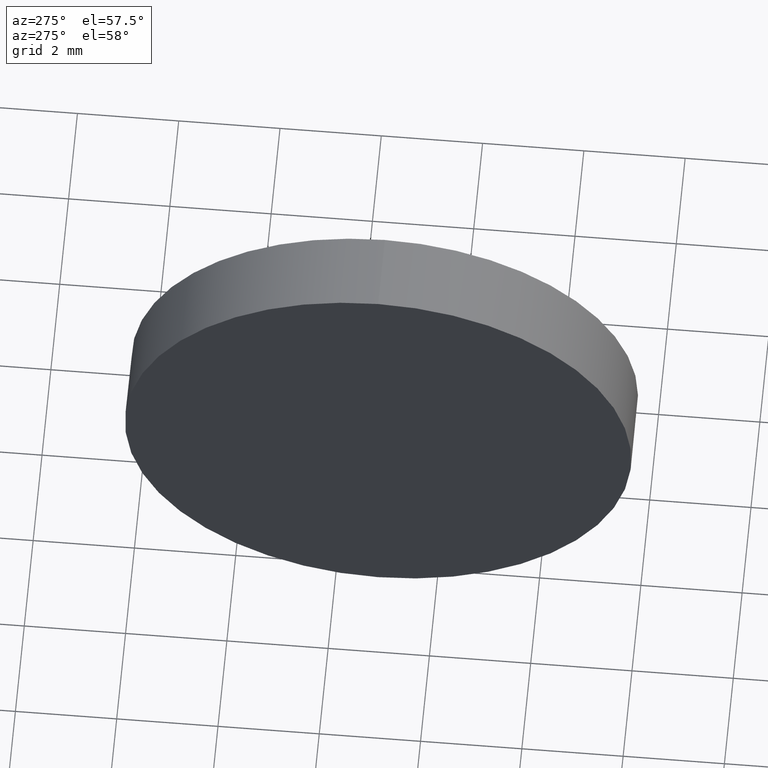
[diagram: clean part render]
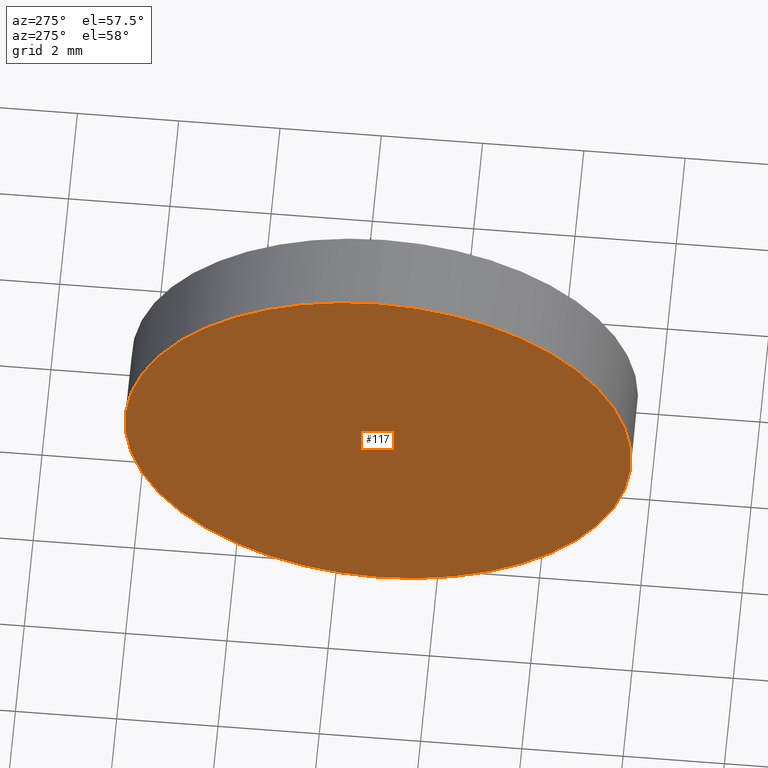
[diagram: same view with one face highlighted and labeled with its STEP entity id]
A machine part, auxiliary view. The second image highlights one B-rep face of the part: STEP entity #117.
In plain terms, the highlighted planar face has unit normal (1, 0, 0).
Its self-contained STEP definition (entity closure, byte-faithful):
#4 = VERTEX_POINT ( 'NONE', #175 ) ;
#14 = AXIS2_PLACEMENT_3D ( 'NONE', #152, #150, #165 ) ;
#18 = FACE_OUTER_BOUND ( 'NONE', #91, .T. ) ;
#36 = CARTESIAN_POINT ( 'NONE',  ( 487.6034320472339200, 77.15318376785940300, 0.0000000000000000000 ) ) ;
#56 = ORIENTED_EDGE ( 'NONE', *, *, #110, .T. ) ;
#60 = AXIS2_PLACEMENT_3D ( 'NONE', #106, #141, #142 ) ;
#91 = EDGE_LOOP ( 'NONE', ( #119, #56 ) ) ;
#93 = CIRCLE ( 'NONE', #14, 5.000000000000004400 ) ;
#102 = DIRECTION ( 'NONE',  ( 0.0000000000000000000, 0.0000000000000000000, 1.000000000000000000 ) ) ;
#106 = CARTESIAN_POINT ( 'NONE',  ( 487.6034320472339200, 77.15318376785940300, 0.0000000000000000000 ) ) ;
#110 = EDGE_CURVE ( 'NONE', #148, #4, #138, .T. ) ;
#117 = ADVANCED_FACE ( 'NONE', ( #18 ), #161, .F. ) ;
#119 = ORIENTED_EDGE ( 'NONE', *, *, #183, .T. ) ;
#126 = CARTESIAN_POINT ( 'NONE',  ( 487.6034320472339200, 77.15318376785940300, -5.000000000000004400 ) ) ;
#138 = CIRCLE ( 'NONE', #181, 5.000000000000004400 ) ;
#141 = DIRECTION ( 'NONE',  ( 1.000000000000000000, 0.0000000000000000000, 0.0000000000000000000 ) ) ;
#142 = DIRECTION ( 'NONE',  ( 0.0000000000000000000, 0.0000000000000000000, -1.000000000000000000 ) ) ;
#148 = VERTEX_POINT ( 'NONE', #126 ) ;
#150 = DIRECTION ( 'NONE',  ( -1.000000000000000000, -0.0000000000000000000, -0.0000000000000000000 ) ) ;
#152 = CARTESIAN_POINT ( 'NONE',  ( 487.6034320472339200, 77.15318376785940300, 0.0000000000000000000 ) ) ;
#161 = PLANE ( 'NONE',  #60 ) ;
#165 = DIRECTION ( 'NONE',  ( 0.0000000000000000000, 0.0000000000000000000, 1.000000000000000000 ) ) ;
#167 = DIRECTION ( 'NONE',  ( -1.000000000000000000, -0.0000000000000000000, -0.0000000000000000000 ) ) ;
#175 = CARTESIAN_POINT ( 'NONE',  ( 487.6034320472339200, 77.15318376785940300, 5.000000000000004400 ) ) ;
#181 = AXIS2_PLACEMENT_3D ( 'NONE', #36, #167, #102 ) ;
#183 = EDGE_CURVE ( 'NONE', #4, #148, #93, .T. ) ;